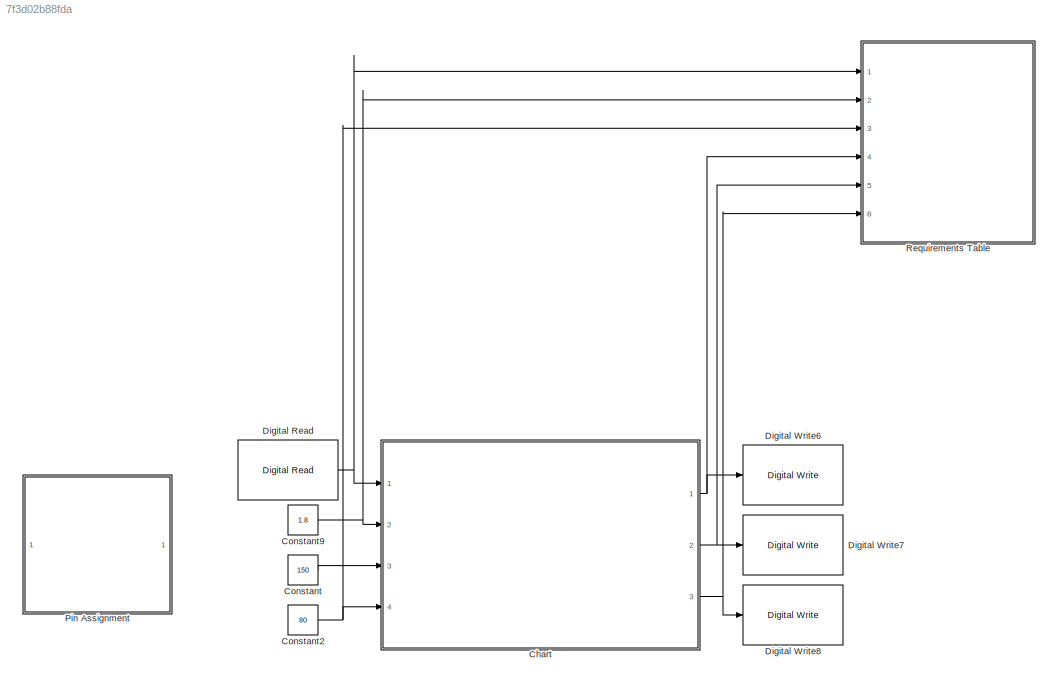
MODEL slx_7f3d02b88fda
KIND model
CONFIG AbsTol = auto
CONFIG EnableMultiTasking = on
CONFIG FixedStep = 1e-3
CONFIG MaxStep = auto
CONFIG MinStep = auto
CONFIG RelTol = 1e-3
CONFIG SampleTimeConstraint = Unconstrained
CONFIG SolverName = FixedStepAuto
CONFIG StartTime = 0.0
CONFIG StopTime = 10.0
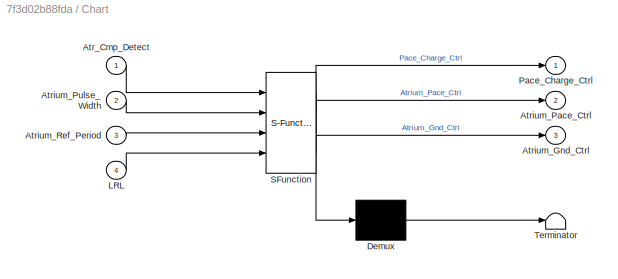
BLOCK [SubSystem] Chart
  ErrorFcn = Stateflow.Translate.translate
  PermitHierarchicalResolution = ExplicitOnly
  Ports = [4, 3]
  RequestExecContextInheritance = off
  SFBlockType = Chart
  TreatAsAtomicUnit = on
BLOCK [Demux] Chart/ Demux 
  Outputs = 1
  Ports = [1, 1]
BLOCK [S-Function] Chart/ SFunction 
  EnableBusSupport = on
  FunctionName = sf_sfun
  PortCounts = [4 4]
  Ports = [4, 4]
  SFcnIsStateOwnerBlock = off
  SFunctionDeploymentMode = off
  Tag = Stateflow S-Function 3
BLOCK [Terminator] Chart/ Terminator 
BLOCK [Inport] Chart/Atr_Cmp_Detect
BLOCK [Outport] Chart/Atrium_Gnd_Ctrl
  Port = 3
BLOCK [Outport] Chart/Atrium_Pace_Ctrl
  Port = 2
BLOCK [Inport] Chart/Atrium_Pulse_Width
  Port = 2
BLOCK [Inport] Chart/Atrium_Ref_Period
  Port = 3
BLOCK [Inport] Chart/LRL
  Port = 4
BLOCK [Outport] Chart/Pace_Charge_Ctrl
BLOCK [Constant] Constant
  OutDataTypeStr = int16
  Value = 150
BLOCK [Constant] Constant2
  Value = 80
BLOCK [Constant] Constant9
  Value = 1.8
BLOCK [Reference] Digital Read  REF=frdmk64flib/Digital Read
  Ports = [0, 1]
  SourceBlock = frdmk64flib/Digital Read
  SourceProductBaseCode = EC_FRDM_K64F
  SourceType = freedomk64f.DigitalRead
BLOCK [Reference] Digital Write6  REF=frdmk64flib/Digital Write
  Ports = [1]
  SourceBlock = frdmk64flib/Digital Write
  SourceProductBaseCode = EC_FRDM_K64F
  SourceType = freedomk64f.DigitalWrite
BLOCK [Reference] Digital Write7  REF=frdmk64flib/Digital Write
  Ports = [1]
  SourceBlock = frdmk64flib/Digital Write
  SourceProductBaseCode = EC_FRDM_K64F
  SourceType = freedomk64f.DigitalWrite
BLOCK [Reference] Digital Write8  REF=frdmk64flib/Digital Write
  Ports = [1]
  SourceBlock = frdmk64flib/Digital Write
  SourceProductBaseCode = EC_FRDM_K64F
  SourceType = freedomk64f.DigitalWrite
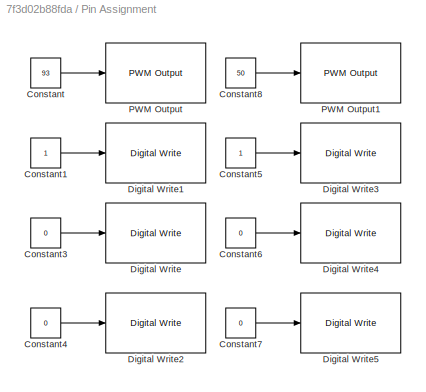
BLOCK [SubSystem] Pin Assignment
  Ports = []
  RequestExecContextInheritance = off
BLOCK [Constant] Pin Assignment/Constant
  OutDataTypeStr = int8
  Value = 93
BLOCK [Constant] Pin Assignment/Constant1
BLOCK [Constant] Pin Assignment/Constant3
  Value = 0
BLOCK [Constant] Pin Assignment/Constant4
  Value = 0
BLOCK [Constant] Pin Assignment/Constant5
BLOCK [Constant] Pin Assignment/Constant6
  Value = 0
BLOCK [Constant] Pin Assignment/Constant7
  Value = 0
BLOCK [Constant] Pin Assignment/Constant8
  OutDataTypeStr = int8
  Value = 50
BLOCK [Reference] Pin Assignment/Digital Write  REF=frdmk64flib/Digital Write
  Ports = [1]
  SourceBlock = frdmk64flib/Digital Write
  SourceProductBaseCode = EC_FRDM_K64F
  SourceType = freedomk64f.DigitalWrite
BLOCK [Reference] Pin Assignment/Digital Write1  REF=frdmk64flib/Digital Write
  Ports = [1]
  SourceBlock = frdmk64flib/Digital Write
  SourceProductBaseCode = EC_FRDM_K64F
  SourceType = freedomk64f.DigitalWrite
BLOCK [Reference] Pin Assignment/Digital Write2  REF=frdmk64flib/Digital Write
  Ports = [1]
  SourceBlock = frdmk64flib/Digital Write
  SourceProductBaseCode = EC_FRDM_K64F
  SourceType = freedomk64f.DigitalWrite
BLOCK [Reference] Pin Assignment/Digital Write3  REF=frdmk64flib/Digital Write
  Ports = [1]
  SourceBlock = frdmk64flib/Digital Write
  SourceProductBaseCode = EC_FRDM_K64F
  SourceType = freedomk64f.DigitalWrite
BLOCK [Reference] Pin Assignment/Digital Write4  REF=frdmk64flib/Digital Write
  Ports = [1]
  SourceBlock = frdmk64flib/Digital Write
  SourceProductBaseCode = EC_FRDM_K64F
  SourceType = freedomk64f.DigitalWrite
BLOCK [Reference] Pin Assignment/Digital Write5  REF=frdmk64flib/Digital Write
  Ports = [1]
  SourceBlock = frdmk64flib/Digital Write
  SourceProductBaseCode = EC_FRDM_K64F
  SourceType = freedomk64f.DigitalWrite
BLOCK [Reference] Pin Assignment/PWM Output  REF=frdmk64flib/PWM Output
  Ports = [1]
  SourceBlock = frdmk64flib/PWM Output
  SourceProductBaseCode = EC_FRDM_K64F
  SourceType = freedomk64f.PWMOutput
BLOCK [Reference] Pin Assignment/PWM Output1  REF=frdmk64flib/PWM Output
  Ports = [1]
  SourceBlock = frdmk64flib/PWM Output
  SourceProductBaseCode = EC_FRDM_K64F
  SourceType = freedomk64f.PWMOutput
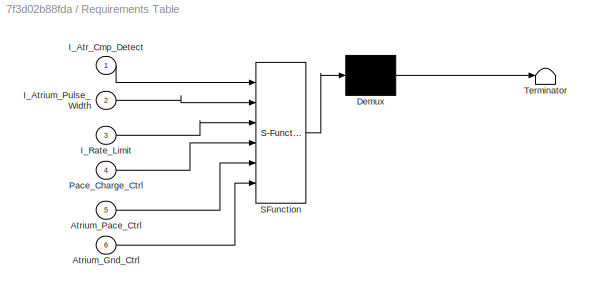
BLOCK [SubSystem] Requirements Table
  ErrorFcn = Stateflow.Translate.translate
  PermitHierarchicalResolution = ExplicitOnly
  Ports = [6]
  RequestExecContextInheritance = off
  SFBlockType = Requirements Table
  TreatAsAtomicUnit = on
BLOCK [Demux] Requirements Table/ Demux 
  Outputs = 1
  Ports = [1, 1]
BLOCK [S-Function] Requirements Table/ SFunction 
  EnableBusSupport = on
  FunctionName = sf_sfun
  PortCounts = [6 1]
  Ports = [6, 1]
  SFcnIsStateOwnerBlock = off
  SFunctionDeploymentMode = off
  Tag = Stateflow S-Function 1
BLOCK [Terminator] Requirements Table/ Terminator 
BLOCK [Inport] Requirements Table/Atrium_Gnd_Ctrl
  Port = 6
BLOCK [Inport] Requirements Table/Atrium_Pace_Ctrl
  Port = 5
BLOCK [Inport] Requirements Table/I_Atr_Cmp_Detect
BLOCK [Inport] Requirements Table/I_Atrium_Pulse_Width
  Port = 2
BLOCK [Inport] Requirements Table/I_Rate_Limit
  Port = 3
BLOCK [Inport] Requirements Table/Pace_Charge_Ctrl
  Port = 4
NET Chart:1 -> Digital Write6:1, Requirements Table:4
NET Chart:2 -> Digital Write7:1, Requirements Table:5
NET Chart:3 -> Digital Write8:1, Requirements Table:6
NET Constant2:1 -> Chart:4, Requirements Table:3
NET Constant9:1 -> Chart:2, Requirements Table:2
LINE Constant:1 -> Chart:3
NET Digital Read:1 -> Chart:1, Requirements Table:1
LINE Pin Assignment/Constant1:1 -> Pin Assignment/Digital Write1:1
LINE Pin Assignment/Constant3:1 -> Pin Assignment/Digital Write:1
LINE Pin Assignment/Constant4:1 -> Pin Assignment/Digital Write2:1
LINE Pin Assignment/Constant5:1 -> Pin Assignment/Digital Write3:1
LINE Pin Assignment/Constant6:1 -> Pin Assignment/Digital Write4:1
LINE Pin Assignment/Constant7:1 -> Pin Assignment/Digital Write5:1
LINE Pin Assignment/Constant8:1 -> Pin Assignment/PWM Output1:1
LINE Pin Assignment/Constant:1 -> Pin Assignment/PWM Output:1
note: NET lines group one-source signal fan-out (src -> all destinations, sorted); 1:1 wires keep LINE
CHART Requirements Table states=0 transitions=28
CHART Chart states=3 transitions=5
  STATE_LABEL 'Inhibit\nentry:\nAtrium_Pace_Ctrl = false;\nAtrium_Gnd_Ctrl = true;\nPace_Charge_Ctrl = true;'
  STATE_LABEL 'Signal_Search\nentry:\nAtrium_Pace_Ctrl = false;\nAtrium_Gnd_Ctrl = true;\nPace_Charge_Ctrl = true;'
  STATE_LABEL 'Pace\nentry:\nPace_Charge_Ctrl = false;\nAtrium_Pace_Ctrl = true;\nAtrium_Gnd_Ctrl = false;'
CHART  states=0 transitions=0
CHART  states=0 transitions=0
